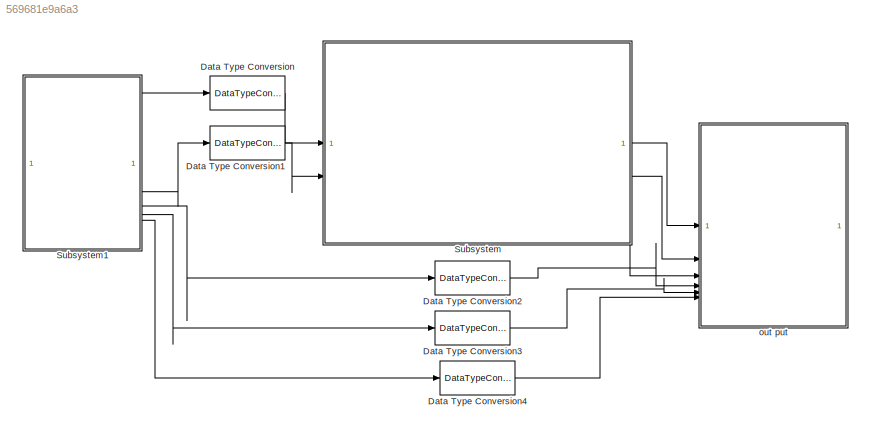
MODEL slx_569681e9a6a3
KIND model
CONFIG AbsTol = auto
CONFIG EnableMultiTasking = off
CONFIG FixedStep = auto
CONFIG MaxStep = auto
CONFIG MinStep = auto
CONFIG RelTol = 1e-3
CONFIG SampleTimeConstraint = Unconstrained
CONFIG SolverName = VariableStepAuto
CONFIG StartTime = 0.0
CONFIG StopTime = 2
BLOCK [DataTypeConversion] Data Type Conversion
  OutDataTypeStr = single
  RndMeth = Floor
  SaturateOnIntegerOverflow = off
BLOCK [DataTypeConversion] Data Type Conversion1
  OutDataTypeStr = single
  RndMeth = Floor
  SaturateOnIntegerOverflow = off
BLOCK [DataTypeConversion] Data Type Conversion2
  OutDataTypeStr = boolean
  RndMeth = Floor
  SaturateOnIntegerOverflow = off
BLOCK [DataTypeConversion] Data Type Conversion3
  OutDataTypeStr = boolean
  RndMeth = Floor
  SaturateOnIntegerOverflow = off
BLOCK [DataTypeConversion] Data Type Conversion4
  OutDataTypeStr = boolean
  RndMeth = Floor
  SaturateOnIntegerOverflow = off
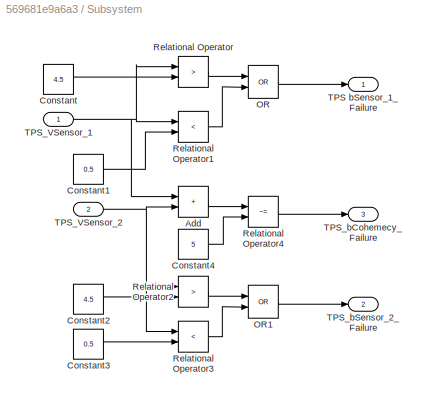
BLOCK [SubSystem] Subsystem
BLOCK [Sum] Subsystem/Add
  IconShape = rectangular
BLOCK [Constant] Subsystem/Constant
  Value = 4.5
BLOCK [Constant] Subsystem/Constant1
  Value = 0.5
BLOCK [Constant] Subsystem/Constant2
  Value = 4.5
BLOCK [Constant] Subsystem/Constant3
  Value = 0.5
BLOCK [Constant] Subsystem/Constant4
  Value = 5
BLOCK [Logic] Subsystem/OR
  AllPortsSameDT = off
  Operator = OR
  OutDataTypeStr = boolean
BLOCK [Logic] Subsystem/OR1
  AllPortsSameDT = off
  Operator = OR
  OutDataTypeStr = boolean
BLOCK [RelationalOperator] Subsystem/Relational Operator
  InputSameDT = off
  Operator = >
  OutDataTypeStr = boolean
  RndMeth = Simplest
BLOCK [RelationalOperator] Subsystem/Relational Operator1
  InputSameDT = off
  Operator = <
  OutDataTypeStr = boolean
  RndMeth = Simplest
BLOCK [RelationalOperator] Subsystem/Relational Operator2
  InputSameDT = off
  Operator = >
  OutDataTypeStr = boolean
  RndMeth = Simplest
BLOCK [RelationalOperator] Subsystem/Relational Operator3
  InputSameDT = off
  Operator = <
  OutDataTypeStr = boolean
  RndMeth = Simplest
BLOCK [RelationalOperator] Subsystem/Relational Operator4
  InputSameDT = off
  Operator = ~=
  OutDataTypeStr = boolean
  RndMeth = Simplest
BLOCK [Outport] Subsystem/TPS bSensor_1_Failure
  OutDataTypeStr = boolean
BLOCK [Inport] Subsystem/TPS_VSensor_1
  OutDataTypeStr = single
BLOCK [Inport] Subsystem/TPS_VSensor_2
  OutDataTypeStr = single
  Port = 2
BLOCK [Outport] Subsystem/TPS_bCohemecy_Failure
  OutDataTypeStr = boolean
  Port = 3
BLOCK [Outport] Subsystem/TPS_bSensor_2_Failure
  OutDataTypeStr = boolean
  Port = 2
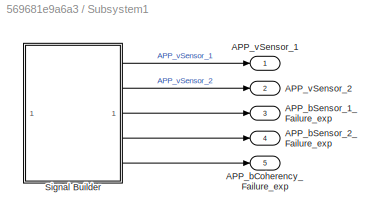
BLOCK [SubSystem] Subsystem1
BLOCK [Outport] Subsystem1/APP_bCoherency_Failure_exp
  Port = 5
BLOCK [Outport] Subsystem1/APP_bSensor_1_Failure_exp
  Port = 3
BLOCK [Outport] Subsystem1/APP_bSensor_2_Failure_exp
  Port = 4
BLOCK [Outport] Subsystem1/APP_vSensor_1
BLOCK [Outport] Subsystem1/APP_vSensor_2
  Port = 2
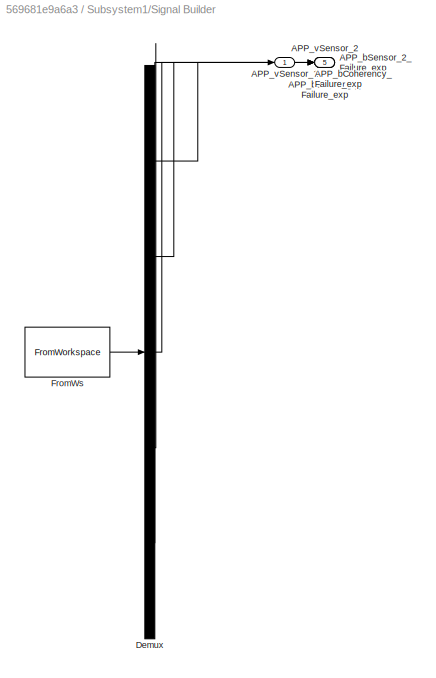
BLOCK [SubSystem] Subsystem1/Signal Builder
  ClipboardFcn = sigbuilder_block('clipboard');
  CloseFcn = sigbuilder_block('close');
  ContinueFcn = sigbuilder_block('continue');
  CopyFcn = sigbuilder_block('copy');
  DeleteFcn = sigbuilder_block('delete');
  LoadFcn = sigbuilder_block('load');
  MaskHideContents = on
  ModelCloseFcn = sigbuilder_block('modelClose');
  NameChangeFcn = sigbuilder_block('namechange');
  OpenFcn = sigbuilder_block('open',[430.2 110.4 550.8 400.2 ]);
  PauseFcn = sigbuilder_block('pause');
  PreSaveFcn = sigbuilder_block('preSave');
  StartFcn = sigbuilder_block('start');
  StopFcn = sigbuilder_block('stop');
  Tag = STV Subsys
BLOCK [Outport] Subsystem1/Signal Builder/APP_bCoherency_Failure_exp
  Port = 5
  Tag = STV Outport
BLOCK [Outport] Subsystem1/Signal Builder/APP_bSensor_1_Failure_exp
  Port = 3
  Tag = STV Outport
BLOCK [Outport] Subsystem1/Signal Builder/APP_bSensor_2_Failure_exp
  Port = 4
  Tag = STV Outport
BLOCK [Outport] Subsystem1/Signal Builder/APP_vSensor_1
  Tag = STV Outport
BLOCK [Outport] Subsystem1/Signal Builder/APP_vSensor_2
  Port = 2
  Tag = STV Outport
BLOCK [Demux] Subsystem1/Signal Builder/Demux
  DisplayOption = none
  Outputs = 5
  Tag = STV Demux
BLOCK [FromWorkspace] Subsystem1/Signal Builder/FromWs
  Tag = STV FromWs
  VariableName = tuvar
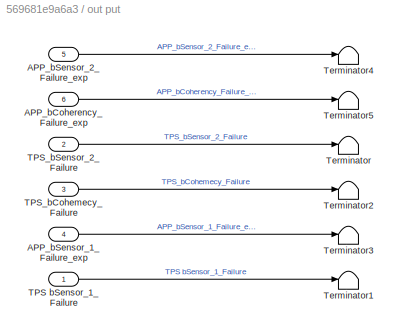
BLOCK [SubSystem] out put
BLOCK [Inport] out put/APP_bCoherency_Failure_exp
  Port = 6
BLOCK [Inport] out put/APP_bSensor_1_Failure_exp
  Port = 4
BLOCK [Inport] out put/APP_bSensor_2_Failure_exp
  Port = 5
BLOCK [Inport] out put/TPS bSensor_1_Failure
BLOCK [Inport] out put/TPS_bCohemecy_Failure
  Port = 3
BLOCK [Inport] out put/TPS_bSensor_2_Failure
  Port = 2
BLOCK [Terminator] out put/Terminator
BLOCK [Terminator] out put/Terminator1
BLOCK [Terminator] out put/Terminator2
BLOCK [Terminator] out put/Terminator3
BLOCK [Terminator] out put/Terminator4
BLOCK [Terminator] out put/Terminator5
LINE Data Type Conversion1:1 -> Subsystem:2
LINE Data Type Conversion2:1 -> out put:4
LINE Data Type Conversion3:1 -> out put:5
LINE Data Type Conversion4:1 -> out put:6
LINE Data Type Conversion:1 -> Subsystem:1
LINE Subsystem/Add:1 -> Subsystem/Relational Operator4:1
LINE Subsystem/Constant1:1 -> Subsystem/Relational Operator1:2
LINE Subsystem/Constant2:1 -> Subsystem/Relational Operator2:2
LINE Subsystem/Constant3:1 -> Subsystem/Relational Operator3:2
LINE Subsystem/Constant4:1 -> Subsystem/Relational Operator4:2
LINE Subsystem/Constant:1 -> Subsystem/Relational Operator:2
LINE Subsystem/OR1:1 -> Subsystem/TPS_bSensor_2_Failure:1
LINE Subsystem/OR:1 -> Subsystem/TPS bSensor_1_Failure:1
LINE Subsystem/Relational Operator1:1 -> Subsystem/OR:2
LINE Subsystem/Relational Operator2:1 -> Subsystem/OR1:1
LINE Subsystem/Relational Operator3:1 -> Subsystem/OR1:2
LINE Subsystem/Relational Operator4:1 -> Subsystem/TPS_bCohemecy_Failure:1
LINE Subsystem/Relational Operator:1 -> Subsystem/OR:1
NET Subsystem/TPS_VSensor_1:1 -> Subsystem/Add:1, Subsystem/Relational Operator1:1, Subsystem/Relational Operator:1
NET Subsystem/TPS_VSensor_2:1 -> Subsystem/Add:2, Subsystem/Relational Operator2:1, Subsystem/Relational Operator3:1
LINE Subsystem1/Signal Builder:1 -> Subsystem1/APP_vSensor_1:1
LINE Subsystem1/Signal Builder:2 -> Subsystem1/APP_vSensor_2:1
LINE Subsystem1/Signal Builder:3 -> Subsystem1/APP_bSensor_1_Failure_exp:1
LINE Subsystem1/Signal Builder:4 -> Subsystem1/APP_bSensor_2_Failure_exp:1
LINE Subsystem1/Signal Builder:5 -> Subsystem1/APP_bCoherency_Failure_exp:1
LINE Subsystem1:1 -> Data Type Conversion:1
LINE Subsystem1:2 -> Data Type Conversion1:1
LINE Subsystem1:3 -> Data Type Conversion2:1
LINE Subsystem1:4 -> Data Type Conversion3:1
LINE Subsystem1:5 -> Data Type Conversion4:1
LINE Subsystem:1 -> out put:1
LINE Subsystem:2 -> out put:2
LINE Subsystem:3 -> out put:3
LINE out put/APP_bCoherency_Failure_exp:1 -> out put/Terminator5:1
LINE out put/APP_bSensor_1_Failure_exp:1 -> out put/Terminator3:1
LINE out put/APP_bSensor_2_Failure_exp:1 -> out put/Terminator4:1
LINE out put/TPS bSensor_1_Failure:1 -> out put/Terminator1:1
LINE out put/TPS_bCohemecy_Failure:1 -> out put/Terminator2:1
LINE out put/TPS_bSensor_2_Failure:1 -> out put/Terminator:1
note: NET lines group one-source signal fan-out (src -> all destinations, sorted); 1:1 wires keep LINE
